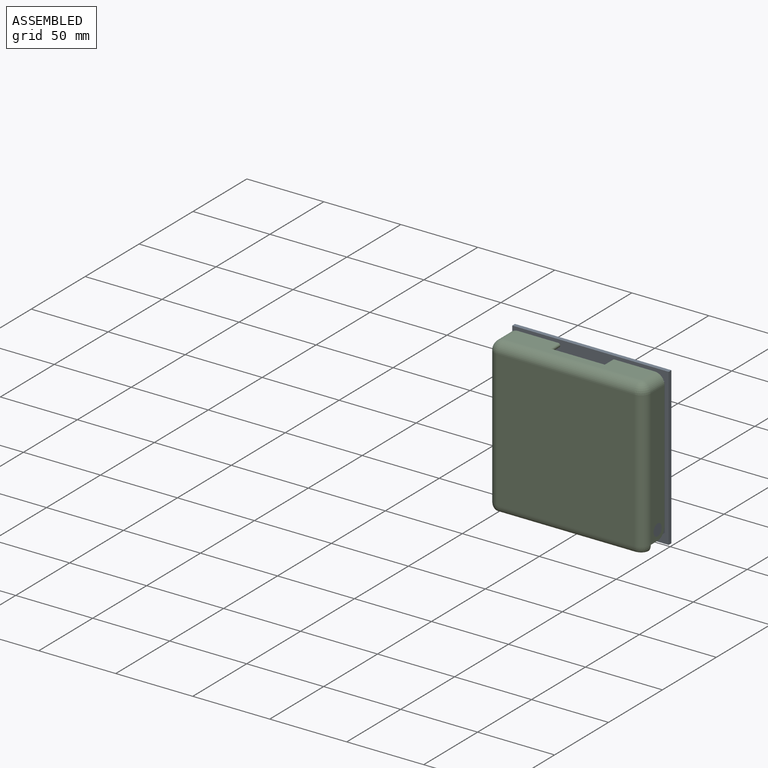
[diagram: assembled view]
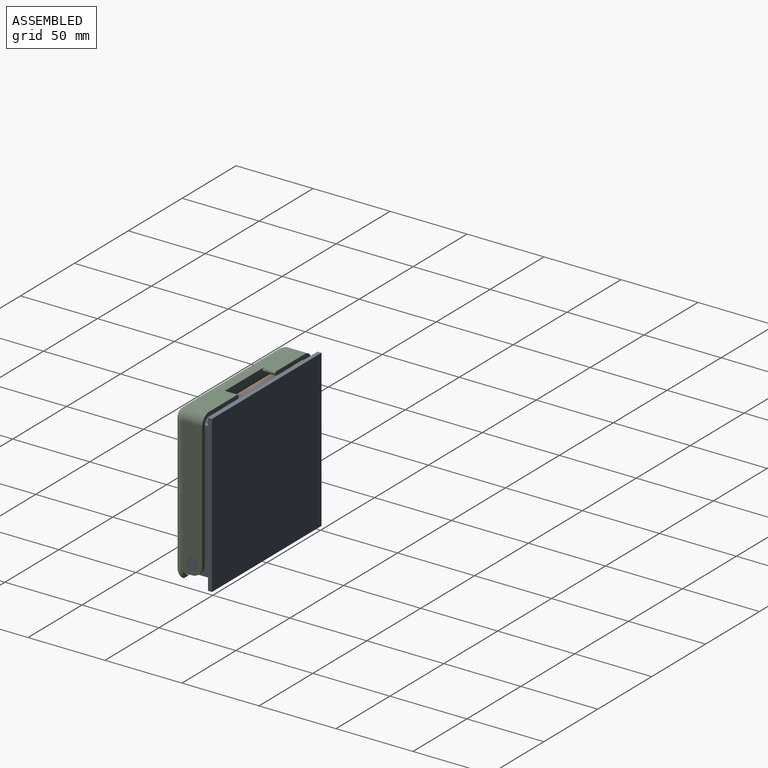
[diagram: assembled view, second angle]
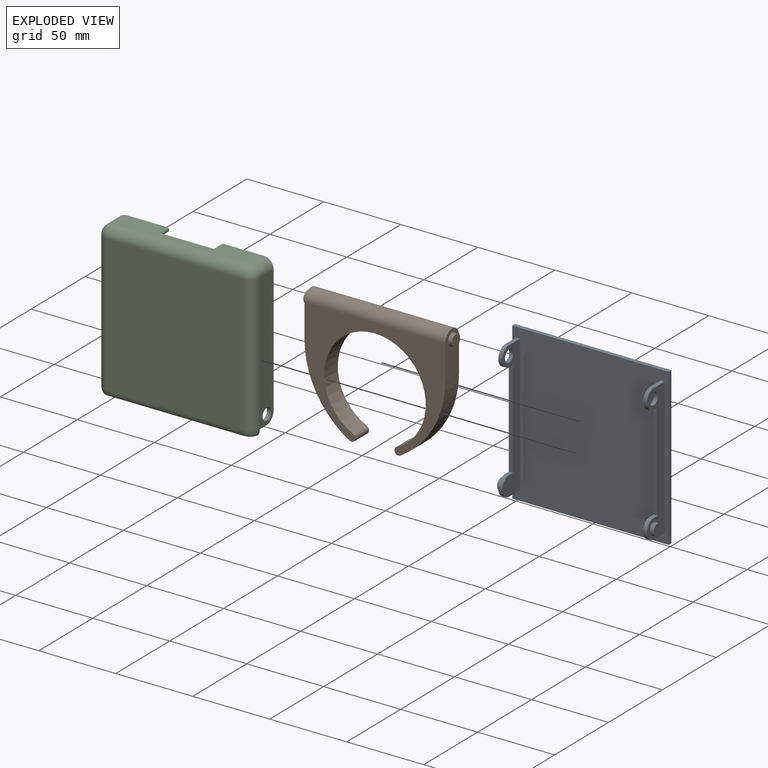
[diagram: exploded view]
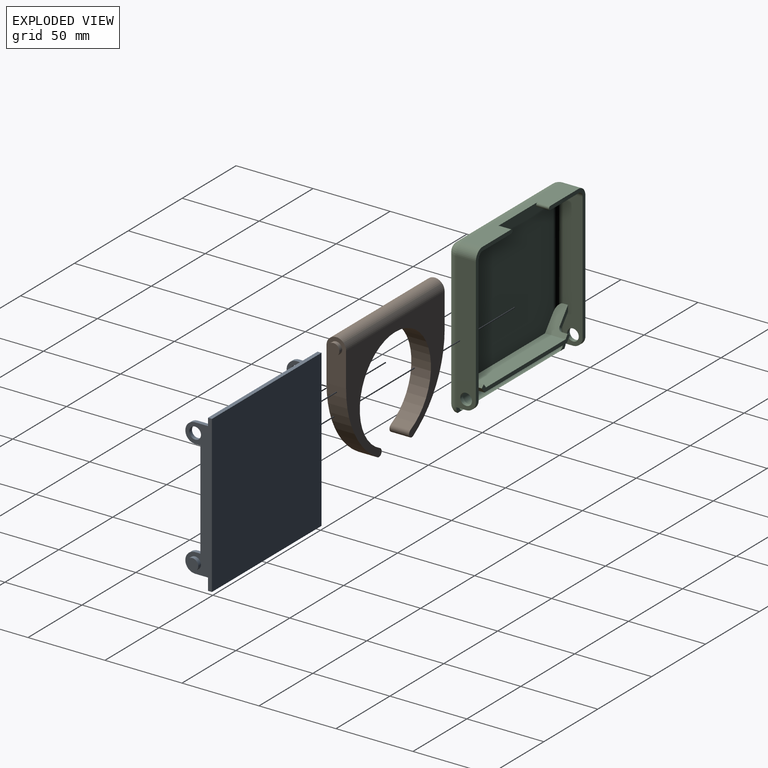
[diagram: exploded view, second angle]
ASSEMBLY  parts=3 mates=2
PART A: 30 faces, bbox 101.6x19.1x101.6 mm
  f0: plane 10.16x2.54mm, normal (0,0,1), area 25.8mm2, adj f4,f12,f19,f28
  f1: plane 10.16x2.54mm, normal (0,0,-1), area 25.8mm2, adj f12,f14,f17,f29
  f2: cylinder r=6.35mm len=12.7mm, axis (-1,0,0), area 50.7mm2, adj f3,f16,f19,f28
  f3: plane 3.39x2.54mm, normal (0,0,1), area 8.6mm2, adj f2,f5,f19,f28
  f4: cylinder r=6.35mm len=12.7mm, axis (-1,0,0), area 50.7mm2, adj f0,f6,f19,f28
  f5: plane 63.5x2.54mm, normal (0,-1,0), area 161.3mm2, adj f3,f6,f19,f28
  f6: plane 3.39x2.54mm, normal (0,0,-1), area 8.6mm2, adj f4,f5,f19,f28
  f7: cylinder r=3.81mm len=7.62mm, axis (-1,0,0), area 60.8mm2, adj f19,f28
  f8: plane 101.6x2.54mm, normal (0,0,1), area 258.1mm2, adj f9,f11,f12,f13
  f9: plane 101.6x2.54mm, normal (-1,0,0), area 258.1mm2, adj f8,f10,f12,f13
  f10: plane 101.6x2.54mm, normal (0,0,-1), area 258.1mm2, adj f9,f11,f12,f13
  f11: plane 101.6x2.54mm, normal (1,0,0), area 258.1mm2, adj f8,f10,f12,f13
  f12: plane 101.6x101.6mm, normal (0,-1,0), area 9870.9mm2, adj f0,f1,f8,f9,f10,f11,f14,f15
  f13: plane 101.6x101.6mm, normal (0,1,0), area 10322.6mm2, adj f8,f9,f10,f11
  f14: plane 88.9x16.51mm, normal (1,0,0), area 723.6mm2, adj f1,f12,f15,f17,f18,f20,f21,f22
  f15: plane 10.16x2.54mm, normal (0,0,1), area 25.8mm2, adj f12,f14,f20,f29
  f16: plane 10.16x2.54mm, normal (0,0,-1), area 25.8mm2, adj f2,f12,f19,f28
  f17: cylinder r=6.35mm len=12.7mm, axis (-1,0,0), area 50.7mm2, adj f1,f14,f18,f29
  f18: plane 3.39x2.54mm, normal (0,0,1), area 8.6mm2, adj f14,f17,f21,f29
  f19: plane 88.9x16.51mm, normal (-1,0,0), area 723.6mm2, adj f0,f2,f3,f4,f5,f6,f7,f12
  f20: cylinder r=6.35mm len=12.7mm, axis (-1,0,0), area 50.7mm2, adj f14,f15,f22,f29
  f21: plane 63.5x2.54mm, normal (0,-1,0), area 161.3mm2, adj f14,f18,f22,f29
  f22: plane 3.39x2.54mm, normal (0,0,-1), area 8.6mm2, adj f14,f20,f21,f29
  f23: cylinder r=3.81mm len=7.62mm, axis (-1,0,0), area 60.8mm2, adj f14,f29
  f24: plane 7.62x7.62mm, normal (-1,0,0), area 45.6mm2, adj f25
  f25: cylinder r=3.81mm len=7.62mm, axis (1,0,0), area 60.8mm2, adj f19,f24
  f26: cylinder r=3.81mm len=7.62mm, axis (1,0,0), area 60.8mm2, adj f14,f27
  f27: plane 7.62x7.62mm, normal (1,0,0), area 45.6mm2, adj f26
  f28: plane 88.9x16.51mm, normal (1,0,0), area 769.2mm2, adj f0,f2,f3,f4,f5,f6,f7,f12
  f29: plane 88.9x16.51mm, normal (-1,0,0), area 769.2mm2, adj f1,f12,f15,f17,f18,f20,f21,f22
PART B: 14 faces, bbox 96.5x12.7x80.4 mm
  f0: cylinder r=59.96mm len=51.45mm, axis (0,1,0), area 785.6mm2, adj f1,f6,f7,f8
  f1: cylinder r=2.54mm len=12.7mm, axis (0,1,0), area 104.4mm2, adj f0,f2,f7,f8
  f2: cylinder r=33.02mm len=66.04mm, axis (0,1,0), area 2263.4mm2, adj f1,f3,f7,f8
  f3: cylinder r=2.54mm len=12.7mm, axis (0,1,0), area 104.4mm2, adj f2,f4,f7,f8
  f4: cylinder r=59.96mm len=51.45mm, axis (0,1,0), area 785.6mm2, adj f3,f5,f7,f8
  f5: plane 28.58x12.7mm, normal (1,0,0), area 300mm2, adj f4,f7,f8,f11,f13
  f6: plane 28.58x12.7mm, normal (-1,0,0), area 300mm2, adj f0,f7,f8,f10,f13
  f7: plane 91.44x74.04mm, normal (0,-1,0), area 2379.3mm2, adj f0,f1,f2,f3,f4,f5,f6,f13
  f8: plane 91.44x74.04mm, normal (0,1,0), area 2379.3mm2, adj f0,f1,f2,f3,f4,f5,f6,f13
  f9: plane 7.62x7.62mm, normal (-1,0,0), area 45.6mm2, adj f10
  f10: cylinder r=3.81mm len=7.62mm, axis (1,0,0), area 60.8mm2, adj f6,f9
  f11: cylinder r=3.81mm len=7.62mm, axis (1,0,0), area 60.8mm2, adj f5,f12
  f12: plane 7.62x7.62mm, normal (1,0,0), area 45.6mm2, adj f11
  f13: cylinder r=6.35mm len=91.44mm, axis (1,0,0), area 1824.1mm2, adj f5,f6,f7,f8
PART C: 58 faces, bbox 101.6x19.1x101.6 mm
  f0: plane 88.9x12.7mm, normal (1,0,0), area 1061.9mm2, adj f2,f6,f11,f29,f31,f42,f45,f50
  f1: plane 88.9x33.87mm, normal (0,1,0), area 299.1mm2, adj f3,f13,f14,f21,f27,f33,f40,f57
  f2: plane 88.9x33.87mm, normal (0,1,0), area 299.1mm2, adj f0,f13,f15,f17,f27,f29,f41,f53
  f3: plane 88.9x12.7mm, normal (-1,0,0), area 1061.9mm2, adj f1,f8,f9,f12,f33,f37,f43,f47
  f4: plane 6.35x3.81mm, normal (0,1,0), area 11.3mm2, adj f22,f34,f54,f56
  f5: plane 6.35x3.81mm, normal (0,1,0), area 11.3mm2, adj f26,f38,f55,f56
  f6: plane 14.23x13.34mm, normal (0.78,0,0.62), area 143.8mm2, adj f0,f7,f10,f31,f44,f50,f51,f52
  f7: plane 81.69x5.02mm, normal (0,1,0), area 209.7mm2, adj f6,f8,f9,f44,f45,f46,f49,f52
  f8: plane 13.34x12.7mm, normal (0.78,0,-0.62), area 137.9mm2, adj f3,f7,f28,f37,f46,f47,f48,f49
  f9: plane 14.23x13.34mm, normal (-0.78,0,0.62), area 143.8mm2, adj f3,f7,f10,f12,f44,f47,f48,f49
  f10: plane 88.9x80.01mm, normal (0,1,0), area 7041.2mm2, adj f6,f9,f12,f31,f32,f44
  f11: cylinder r=3.81mm len=19.05mm, axis (0,0,1), area 103.7mm2, adj f0,f28,f34,f45
  f12: cylinder r=3.81mm len=70.55mm, axis (0,0,-1), area 404.1mm2, adj f3,f9,f10,f35
  f13: plane 88.9x12.7mm, normal (0,0,1), area 828.5mm2, adj f1,f2,f17,f20,f21,f39,f40,f41
  f14: plane 88.9x12.7mm, normal (1,0,0), area 1074.8mm2, adj f1,f21,f25,f43,f55,f57
  f15: plane 88.9x12.7mm, normal (-1,0,0), area 1074.8mm2, adj f2,f17,f19,f42,f53,f54
  f16: plane 88.9x88.9mm, normal (0,-1,0), area 7903.2mm2, adj f19,f20,f24,f25
  f17: cylinder r=6.35mm len=12.7mm, axis (0,-1,0), area 126.7mm2, adj f2,f13,f15,f18
  f18: sphere r=6.35mm, area 63.3mm2, adj f17,f19,f20
  f19: cylinder r=6.35mm len=88.9mm, axis (0,0,1), area 886.7mm2, adj f15,f16,f18,f22
  f20: cylinder r=6.35mm len=88.9mm, axis (1,0,0), area 886.7mm2, adj f13,f16,f18,f23
  f21: cylinder r=6.35mm len=12.7mm, axis (0,1,0), area 126.7mm2, adj f1,f13,f14,f23
  f22: sphere r=6.35mm, area 38mm2, adj f4,f19,f24,f56
  f23: sphere r=6.35mm, area 63.3mm2, adj f20,f21,f25
  f24: cylinder r=6.35mm len=88.9mm, axis (-1,0,0), area 363.3mm2, adj f16,f22,f26,f56
  f25: cylinder r=6.35mm len=88.9mm, axis (0,0,-1), area 886.7mm2, adj f14,f16,f23,f26
  f26: sphere r=6.35mm, area 38mm2, adj f5,f24,f25,f56
  f27: plane 88.9x12.7mm, normal (0,0,-1), area 828.5mm2, adj f1,f2,f29,f32,f33,f39,f40,f41
  f28: plane 88.9x14.29mm, normal (0,1,0), area 614.9mm2, adj f8,f11,f36,f37,f45,f46
  f29: cylinder r=3.81mm len=12.7mm, axis (0,-1,0), area 76mm2, adj f0,f2,f27,f30
  f30: sphere r=3.81mm, area 22.8mm2, adj f29,f31,f32
  f31: cylinder r=3.81mm len=70.55mm, axis (0,0,1), area 404.1mm2, adj f0,f6,f10,f30
  f32: cylinder r=3.81mm len=88.9mm, axis (1,0,0), area 532mm2, adj f10,f27,f30,f35
  f33: cylinder r=3.81mm len=12.7mm, axis (0,1,0), area 76mm2, adj f1,f3,f27,f35
  f34: sphere r=3.81mm, area 22.8mm2, adj f4,f11,f36
  f35: sphere r=3.81mm, area 22.8mm2, adj f12,f32,f33
  f36: cylinder r=3.81mm len=88.9mm, axis (-1,0,0), area 532mm2, adj f28,f34,f38,f56
  f37: cylinder r=3.81mm len=19.05mm, axis (0,0,-1), area 103.7mm2, adj f3,f8,f28,f38
  f38: sphere r=3.81mm, area 22.8mm2, adj f5,f36,f37
  f39: plane 36.41x2.54mm, normal (0,1,0), area 87.4mm2, adj f13,f27,f40,f41
  f40: cylinder r=1.27mm len=8.26mm, axis (0,1,0), area 32.9mm2, adj f1,f13,f27,f39
  f41: cylinder r=1.27mm len=8.26mm, axis (0,-1,0), area 32.9mm2, adj f2,f13,f27,f39
  f42: cylinder r=3.81mm len=7.62mm, axis (1,0,0), area 60.8mm2, adj f0,f15
  f43: cylinder r=3.81mm len=7.62mm, axis (1,0,0), area 60.8mm2, adj f3,f14
  f44: plane 73.76x13.34mm, normal (0,0,1), area 983.6mm2, adj f6,f7,f9,f10
  f45: plane 13.34x12.7mm, normal (-0.78,0,-0.62), area 137.9mm2, adj f0,f7,f11,f28,f46,f50,f51,f52
  f46: plane 76.2x13.34mm, normal (0,0,-1), area 1016.1mm2, adj f7,f8,f28,f45
  f47: plane 11.35x7.81mm, normal (0,1,0), area 27.7mm2, adj f3,f8,f9,f48
  f48: cylinder r=2.54mm len=3.57mm, axis (-0.78,0,0.62), area 10.1mm2, adj f8,f9,f47,f49
  f49: plane 3.81x1.98mm, normal (0.62,0,0.78), area 9.7mm2, adj f7,f8,f9,f48
  f50: plane 11.35x7.81mm, normal (0,1,0), area 27.7mm2, adj f0,f6,f45,f51
  f51: cylinder r=2.54mm len=3.57mm, axis (0.78,0,0.62), area 10.1mm2, adj f6,f45,f50,f52
  f52: plane 3.81x1.98mm, normal (-0.62,0,0.78), area 9.7mm2, adj f6,f7,f45,f51
  f53: cylinder r=6.35mm len=6.35mm, axis (1,0,0), area 25.3mm2, adj f0,f2,f15,f54
  f54: plane 6.35x2.54mm, normal (0,0,-1), area 16.1mm2, adj f0,f4,f15,f53
  f55: plane 6.35x2.54mm, normal (0,0,-1), area 16.1mm2, adj f3,f5,f14,f57
  f56: plane 99.06x5.08mm, normal (0,0,-1), area 492.1mm2, adj f4,f5,f22,f24,f26,f36
  f57: cylinder r=6.35mm len=6.35mm, axis (1,0,0), area 25.3mm2, adj f1,f3,f14,f55
PLACE A at identity
PLACE B rot(axis=(0.99,-0.09,0.07),0deg) t=(0,-6.35,-1.27)mm
PLACE C rot(axis=(1,0,0),0deg) t=(0,63.5,0)mm
MATE revolute B.f10 <-> A.f4  axis (1,0,0) through (48.26,-12.7,38.1)mm
MATE revolute C.f42 <-> A.f25  axis (1,0,0) through (50.8,-12.7,-38.1)mm
